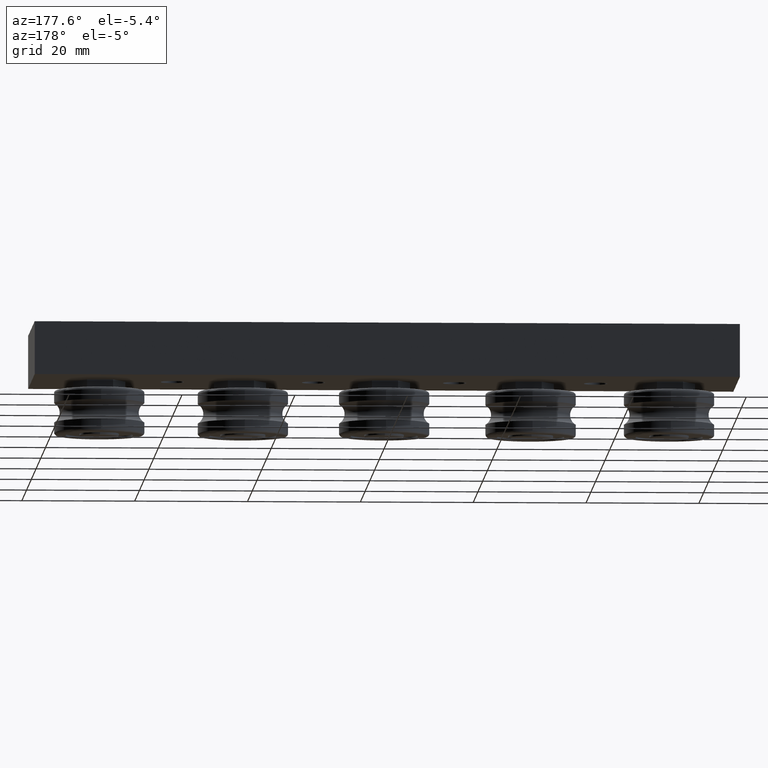
[diagram: clean part render]
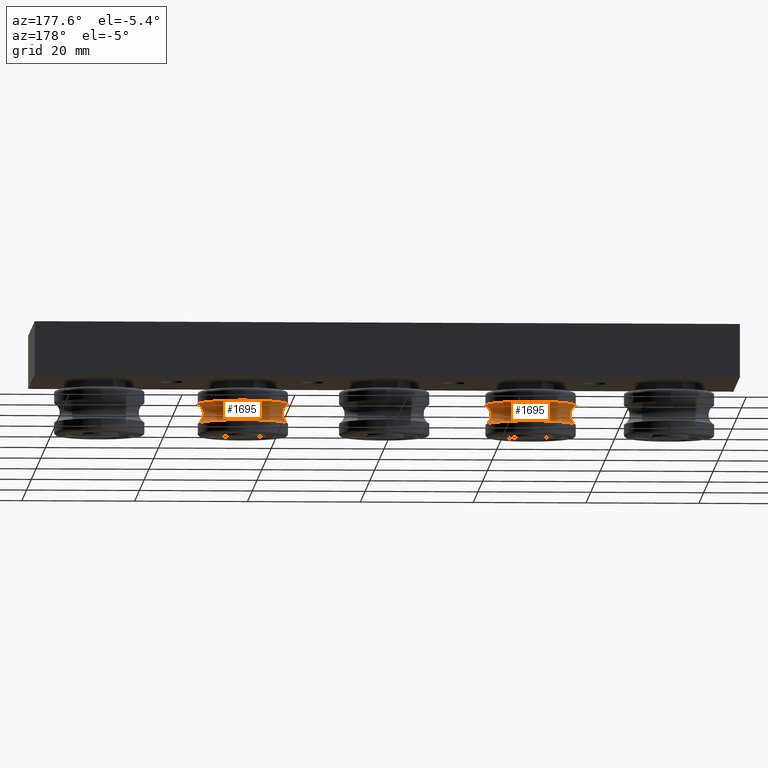
[diagram: same view with one multi-face feature highlighted, each face labeled with its STEP entity id]
A machine part, auxiliary view. The highlighted faces form ONE feature: a constant-radius fillet chain: 2 tangent blend faces with common blend radius 2 mm. The faces share edges in the B-rep.
Their STEP definitions:
[1] entity #1695 (Torus):
#87=TOROIDAL_SURFACE('',#2020,9.,2.);
#319=FACE_OUTER_BOUND('',#456,.T.);
#456=EDGE_LOOP('',(#1468,#1469,#1470,#1471,#1472,#1473));
#774=CIRCLE('',#2018,8.);
#775=CIRCLE('',#2019,8.);
#776=CIRCLE('',#2021,2.);
#777=CIRCLE('',#2022,8.);
#778=CIRCLE('',#2023,8.);
#905=VERTEX_POINT('',#2986);
#906=VERTEX_POINT('',#2987);
#907=VERTEX_POINT('',#2992);
#908=VERTEX_POINT('',#2994);
#1100=EDGE_CURVE('',#905,#906,#774,.T.);
#1102=EDGE_CURVE('',#906,#905,#775,.T.);
#1103=EDGE_CURVE('',#906,#907,#776,.T.);
#1104=EDGE_CURVE('',#908,#907,#777,.T.);
#1105=EDGE_CURVE('',#907,#908,#778,.T.);
#1468=ORIENTED_EDGE('',*,*,#1100,.T.);
#1469=ORIENTED_EDGE('',*,*,#1103,.T.);
#1470=ORIENTED_EDGE('',*,*,#1104,.F.);
#1471=ORIENTED_EDGE('',*,*,#1105,.F.);
#1472=ORIENTED_EDGE('',*,*,#1103,.F.);
#1473=ORIENTED_EDGE('',*,*,#1102,.T.);
#1695=ADVANCED_FACE('',(#319),#87,.F.);
#2018=AXIS2_PLACEMENT_3D('',#2988,#2480,#2481);
#2019=AXIS2_PLACEMENT_3D('',#2990,#2483,#2484);
#2020=AXIS2_PLACEMENT_3D('',#2991,#2485,#2486);
#2021=AXIS2_PLACEMENT_3D('',#2993,#2487,#2488);
#2022=AXIS2_PLACEMENT_3D('',#2995,#2489,#2490);
#2023=AXIS2_PLACEMENT_3D('',#2996,#2491,#2492);
#2480=DIRECTION('center_axis',(0.,0.,-1.));
#2481=DIRECTION('ref_axis',(1.,0.,0.));
#2483=DIRECTION('center_axis',(0.,0.,-1.));
#2484=DIRECTION('ref_axis',(1.,0.,0.));
#2485=DIRECTION('center_axis',(0.,0.,-1.));
#2486=DIRECTION('ref_axis',(-1.,0.,0.));
#2487=DIRECTION('center_axis',(-1.22464679914735E-16,-1.,0.));
#2488=DIRECTION('ref_axis',(1.,-1.22464679914735E-16,0.));
#2489=DIRECTION('center_axis',(0.,0.,-1.));
#2490=DIRECTION('ref_axis',(1.,0.,0.));
#2491=DIRECTION('center_axis',(0.,0.,-1.));
#2492=DIRECTION('ref_axis',(1.,0.,0.));
#2986=CARTESIAN_POINT('',(-9.79717439317883E-16,-8.,1.73205080756888));
#2987=CARTESIAN_POINT('',(8.,-9.79717439317883E-16,1.73205080756888));
#2988=CARTESIAN_POINT('Origin',(0.,0.,1.73205080756888));
#2990=CARTESIAN_POINT('Origin',(0.,0.,1.73205080756888));
#2991=CARTESIAN_POINT('Origin',(0.,0.,0.));
#2992=CARTESIAN_POINT('',(8.,-9.79717439317883E-16,-1.73205080756888));
#2993=CARTESIAN_POINT('Origin',(9.,-1.10218211923262E-15,0.));
#2994=CARTESIAN_POINT('',(-9.79717439317883E-16,-8.,-1.73205080756888));
#2995=CARTESIAN_POINT('Origin',(0.,0.,-1.73205080756888));
#2996=CARTESIAN_POINT('Origin',(0.,0.,-1.73205080756888));
[2] entity #1695 (Torus):
#87=TOROIDAL_SURFACE('',#2020,9.,2.);
#319=FACE_OUTER_BOUND('',#456,.T.);
#456=EDGE_LOOP('',(#1468,#1469,#1470,#1471,#1472,#1473));
#774=CIRCLE('',#2018,8.);
#775=CIRCLE('',#2019,8.);
#776=CIRCLE('',#2021,2.);
#777=CIRCLE('',#2022,8.);
#778=CIRCLE('',#2023,8.);
#905=VERTEX_POINT('',#2986);
#906=VERTEX_POINT('',#2987);
#907=VERTEX_POINT('',#2992);
#908=VERTEX_POINT('',#2994);
#1100=EDGE_CURVE('',#905,#906,#774,.T.);
#1102=EDGE_CURVE('',#906,#905,#775,.T.);
#1103=EDGE_CURVE('',#906,#907,#776,.T.);
#1104=EDGE_CURVE('',#908,#907,#777,.T.);
#1105=EDGE_CURVE('',#907,#908,#778,.T.);
#1468=ORIENTED_EDGE('',*,*,#1100,.T.);
#1469=ORIENTED_EDGE('',*,*,#1103,.T.);
#1470=ORIENTED_EDGE('',*,*,#1104,.F.);
#1471=ORIENTED_EDGE('',*,*,#1105,.F.);
#1472=ORIENTED_EDGE('',*,*,#1103,.F.);
#1473=ORIENTED_EDGE('',*,*,#1102,.T.);
#1695=ADVANCED_FACE('',(#319),#87,.F.);
#2018=AXIS2_PLACEMENT_3D('',#2988,#2480,#2481);
#2019=AXIS2_PLACEMENT_3D('',#2990,#2483,#2484);
#2020=AXIS2_PLACEMENT_3D('',#2991,#2485,#2486);
#2021=AXIS2_PLACEMENT_3D('',#2993,#2487,#2488);
#2022=AXIS2_PLACEMENT_3D('',#2995,#2489,#2490);
#2023=AXIS2_PLACEMENT_3D('',#2996,#2491,#2492);
#2480=DIRECTION('center_axis',(0.,0.,-1.));
#2481=DIRECTION('ref_axis',(1.,0.,0.));
#2483=DIRECTION('center_axis',(0.,0.,-1.));
#2484=DIRECTION('ref_axis',(1.,0.,0.));
#2485=DIRECTION('center_axis',(0.,0.,-1.));
#2486=DIRECTION('ref_axis',(-1.,0.,0.));
#2487=DIRECTION('center_axis',(-1.22464679914735E-16,-1.,0.));
#2488=DIRECTION('ref_axis',(1.,-1.22464679914735E-16,0.));
#2489=DIRECTION('center_axis',(0.,0.,-1.));
#2490=DIRECTION('ref_axis',(1.,0.,0.));
#2491=DIRECTION('center_axis',(0.,0.,-1.));
#2492=DIRECTION('ref_axis',(1.,0.,0.));
#2986=CARTESIAN_POINT('',(-9.79717439317883E-16,-8.,1.73205080756888));
#2987=CARTESIAN_POINT('',(8.,-9.79717439317883E-16,1.73205080756888));
#2988=CARTESIAN_POINT('Origin',(0.,0.,1.73205080756888));
#2990=CARTESIAN_POINT('Origin',(0.,0.,1.73205080756888));
#2991=CARTESIAN_POINT('Origin',(0.,0.,0.));
#2992=CARTESIAN_POINT('',(8.,-9.79717439317883E-16,-1.73205080756888));
#2993=CARTESIAN_POINT('Origin',(9.,-1.10218211923262E-15,0.));
#2994=CARTESIAN_POINT('',(-9.79717439317883E-16,-8.,-1.73205080756888));
#2995=CARTESIAN_POINT('Origin',(0.,0.,-1.73205080756888));
#2996=CARTESIAN_POINT('Origin',(0.,0.,-1.73205080756888));